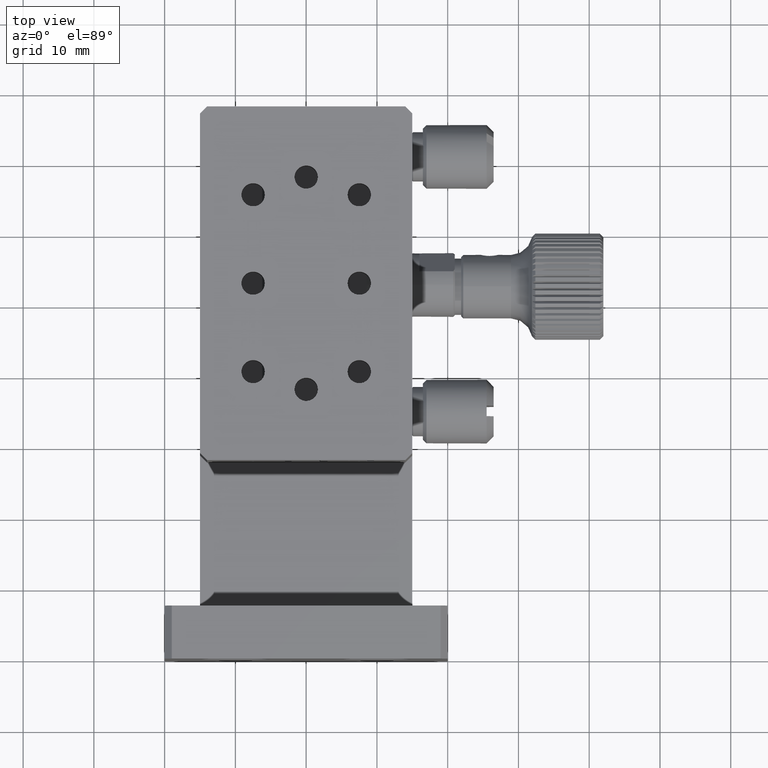
[diagram: clean part render]
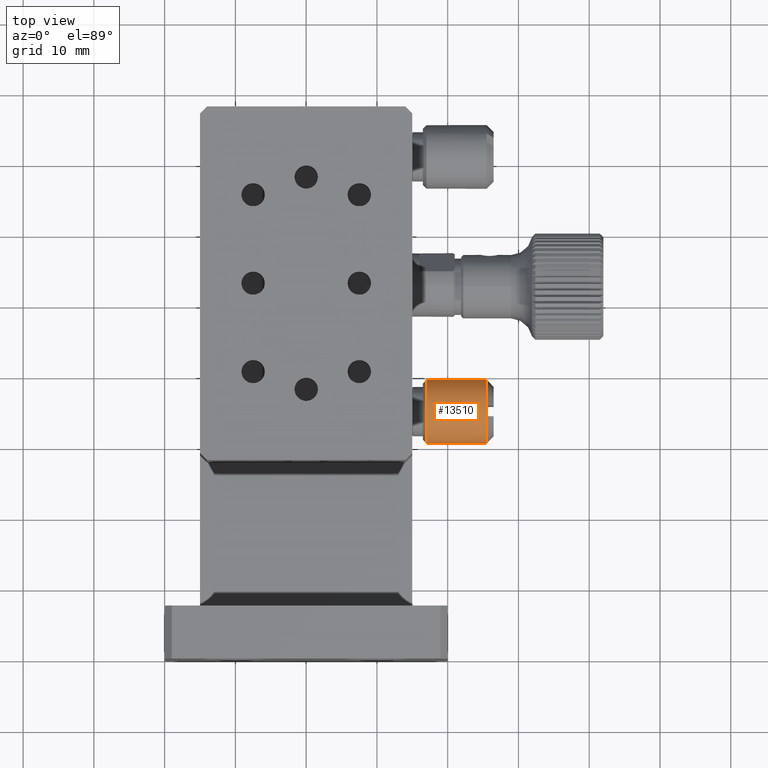
[diagram: same view with one face highlighted and labeled with its STEP entity id]
A machine part, top view. The second image highlights one B-rep face of the part: STEP entity #13510.
In plain terms, the highlighted cylindrical surface (bore or boss wall) has radius 4.5 mm, axis along (1, -0, 0).
Its self-contained STEP definition (entity closure, byte-faithful):
#38 = EDGE_LOOP ( 'NONE', ( #81816 ) ) ;
#3420 = AXIS2_PLACEMENT_3D ( 'NONE', #50818, #69373, #7168 ) ;
#5021 = CIRCLE ( 'NONE', #69918, 4.499999999999999112 ) ;
#5489 = ORIENTED_EDGE ( 'NONE', *, *, #53587, .T. ) ;
#7168 = DIRECTION ( 'NONE',  ( 6.553399798134606402E-14, 0.000000000000000000, -1.000000000000000000 ) ) ;
#9746 = DIRECTION ( 'NONE',  ( 6.553399798134606402E-14, 1.233581138472396349E-14, -1.000000000000000000 ) ) ;
#13510 = ADVANCED_FACE ( 'NONE', ( #118180, #93054 ), #73942, .T. ) ;
#18530 = EDGE_LOOP ( 'NONE', ( #83300, #5489, #37243, #53220 ) ) ;
#19145 = EDGE_CURVE ( 'NONE', #46602, #46602, #104646, .T. ) ;
#22798 = VERTEX_POINT ( 'NONE', #87053 ) ;
#26227 = DIRECTION ( 'NONE',  ( -1.000000000000000000, 1.049160758270774035E-14, -6.558467121309597593E-14 ) ) ;
#27330 = DIRECTION ( 'NONE',  ( 1.000000000000000000, -1.049160758270774035E-14, 6.558467121309597593E-14 ) ) ;
#30676 = CIRCLE ( 'NONE', #99399, 4.499999999999999112 ) ;
#31835 = DIRECTION ( 'NONE',  ( -1.000000000000000000, 1.049160758270774035E-14, -6.558467121309597593E-14 ) ) ;
#32093 = EDGE_CURVE ( 'NONE', #22798, #32757, #5021, .T. ) ;
#32757 = VERTEX_POINT ( 'NONE', #96965 ) ;
#37243 = ORIENTED_EDGE ( 'NONE', *, *, #101458, .T. ) ;
#38639 = CARTESIAN_POINT ( 'NONE',  ( 26.50000000000085620, 35.00000000000117950, -0.7499999999982104315 ) ) ;
#43406 = AXIS2_PLACEMENT_3D ( 'NONE', #38639, #27330, #82323 ) ;
#44020 = EDGE_CURVE ( 'NONE', #44714, #22798, #76358, .T. ) ;
#44714 = VERTEX_POINT ( 'NONE', #99742 ) ;
#46602 = VERTEX_POINT ( 'NONE', #75876 ) ;
#50818 = CARTESIAN_POINT ( 'NONE',  ( 17.00000000000085620, 35.00000000000127187, -0.7499999999988334887 ) ) ;
#51466 = CARTESIAN_POINT ( 'NONE',  ( 25.49999999999755218, 34.28933180685976367, 3.693529083875211505 ) ) ;
#52354 = DIRECTION ( 'NONE',  ( -1.000000000000000000, 1.049160758270774035E-14, -6.558467121309597593E-14 ) ) ;
#53220 = ORIENTED_EDGE ( 'NONE', *, *, #44020, .T. ) ;
#53587 = EDGE_CURVE ( 'NONE', #32757, #78477, #72570, .T. ) ;
#54586 = CARTESIAN_POINT ( 'NONE',  ( 25.50000000000085620, 35.00000000000118661, -0.7499999999982760457 ) ) ;
#69373 = DIRECTION ( 'NONE',  ( 1.000000000000000000, -1.049160758270774035E-14, 6.558467121309597593E-14 ) ) ;
#69918 = AXIS2_PLACEMENT_3D ( 'NONE', #88832, #52354, #116877 ) ;
#72570 = CIRCLE ( 'NONE', #95597, 4.499999999999999112 ) ;
#73942 = CYLINDRICAL_SURFACE ( 'NONE', #43406, 4.499999999999999112 ) ;
#75876 = CARTESIAN_POINT ( 'NONE',  ( 17.00000000000115108, 35.00000000000127187, -5.249999999998832045 ) ) ;
#76358 = CIRCLE ( 'NONE', #118329, 4.499999999999999112 ) ;
#78288 = CARTESIAN_POINT ( 'NONE',  ( 25.50000000000085265, 35.00000000000118661, -0.7499999999982760457 ) ) ;
#78477 = VERTEX_POINT ( 'NONE', #51466 ) ;
#81816 = ORIENTED_EDGE ( 'NONE', *, *, #19145, .T. ) ;
#82323 = DIRECTION ( 'NONE',  ( 6.553399798134606402E-14, 0.000000000000000000, -1.000000000000000000 ) ) ;
#83300 = ORIENTED_EDGE ( 'NONE', *, *, #32093, .T. ) ;
#86270 = CARTESIAN_POINT ( 'NONE',  ( 25.50000000000085265, 35.00000000000118661, -0.7499999999982760457 ) ) ;
#87053 = CARTESIAN_POINT ( 'NONE',  ( 25.49999999999801048, 35.71066819314258822, -5.193529083871767149 ) ) ;
#88832 = CARTESIAN_POINT ( 'NONE',  ( 25.50000000000085620, 35.00000000000118661, -0.7499999999982760457 ) ) ;
#91663 = DIRECTION ( 'NONE',  ( -1.000000000000000000, 1.049160758270774035E-14, -6.558467121309597593E-14 ) ) ;
#93054 = FACE_OUTER_BOUND ( 'NONE', #38, .T. ) ;
#95597 = AXIS2_PLACEMENT_3D ( 'NONE', #86270, #31835, #105348 ) ;
#96965 = CARTESIAN_POINT ( 'NONE',  ( 25.50000000000084910, 34.21072703914934721, -5.180242453094374255 ) ) ;
#97411 = DIRECTION ( 'NONE',  ( 6.553399798134606402E-14, -1.541976423090495436E-15, -1.000000000000000000 ) ) ;
#99399 = AXIS2_PLACEMENT_3D ( 'NONE', #54586, #91663, #9746 ) ;
#99742 = CARTESIAN_POINT ( 'NONE',  ( 25.50000000000086331, 35.78927296085300469, 3.680242453097233746 ) ) ;
#101458 = EDGE_CURVE ( 'NONE', #78477, #44714, #30676, .T. ) ;
#104646 = CIRCLE ( 'NONE', #3420, 4.499999999999999112 ) ;
#105348 = DIRECTION ( 'NONE',  ( 6.553399798134606402E-14, 1.541976423090495436E-15, -1.000000000000000000 ) ) ;
#116877 = DIRECTION ( 'NONE',  ( 6.553399798134606402E-14, -1.541976423090495476E-14, -1.000000000000000000 ) ) ;
#118180 = FACE_OUTER_BOUND ( 'NONE', #18530, .T. ) ;
#118329 = AXIS2_PLACEMENT_3D ( 'NONE', #78288, #26227, #97411 ) ;